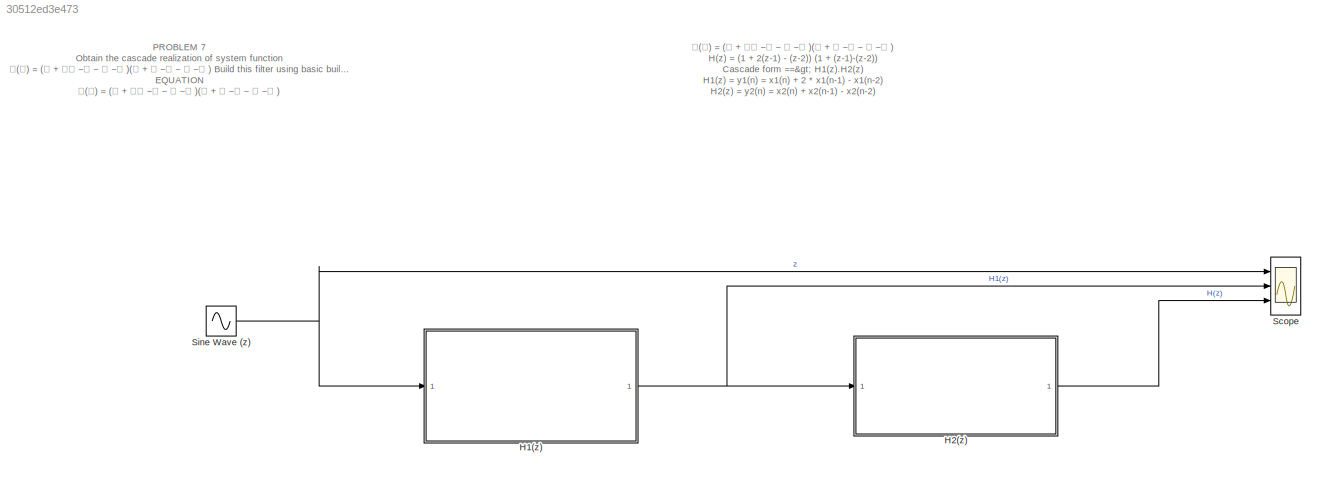
MODEL slx_30512ed3e473
KIND model
CONFIG AbsTol = auto
CONFIG EnableMultiTasking = off
CONFIG FixedStep = auto
CONFIG MaxStep = auto
CONFIG MinStep = auto
CONFIG RelTol = 1e-3
CONFIG SampleTimeConstraint = Unconstrained
CONFIG SolverName = VariableStepAuto
CONFIG StartTime = 0.0
CONFIG StopTime = 10.0
BLOCK [ModelReference] H1(z)
  ModelNameDialog = H1_z
  ModelReferenceVersion = 1.15
  Ports = [1, 1]
BLOCK [ModelReference] H2(z)
  ModelNameDialog = H2_z
  ModelReferenceVersion = 1.16
  Ports = [1, 1]
BLOCK [Scope] Scope
  Floating = off
  NumInputPorts = 3
  Ports = [3]
  ScopeSpecificationString = Simulink.scopes.TimeScopeBlockCfg('CurrentConfiguration', extmgr.ConfigurationSet(extmgr.Configuration('Core','General UI',true),extmgr.Configuration('Core','Source UI',true),extmgr.Configuration('Sources','WiredSimulink',true),extmgr.Configuration('Visuals','Time Domain',true,'SerializedDisplays',{struct('MinYLimReal','-2.73796','MaxYLimReal','2.74215','YLabelReal','','MinYLimMag','0.00000','MaxY...<+1334ch>
BLOCK [Sin] Sine Wave (z)
  Ports = [0, 1]
  SampleTime = 0
ANNOTATION (root): PROBLEM 7 Obtain the cascade realization of system function 𝐇(𝐳) = (𝟏 + 𝟐𝐳 −𝟏 − 𝐳 −𝟐 )(𝟏 + 𝐳 −𝟏 − 𝐳 −𝟐 ) Build this filter using basic building blocks in Simulink. Make this a reference model. EQUATION 𝐇(𝐳) = (𝟏 + 𝟐𝐳 −𝟏 − 𝐳 −𝟐 )(𝟏 + 𝐳 −𝟏 − 𝐳 −𝟐 )
ANNOTATION (root): 𝐇(𝐳) = (𝟏 + 𝟐𝐳 −𝟏 − 𝐳 −𝟐 )(𝟏 + 𝐳 −𝟏 − 𝐳 −𝟐 ) H(z) = (1 + 2(z-1) - (z-2)) (1 + (z-1)-(z-2)) Cascade form ==> H1(z).H2(z) H1(z) = y1(n) = x1(n) + 2 * x1(n-1) - x1(n-2) H2(z) = y2(n) = x2(n) + x2(n-1) - x2(n-2)
NET H1(z):1 -> H2(z):1, Scope:2
LINE H2(z):1 -> Scope:3
NET Sine Wave (z):1 -> H1(z):1, Scope:1
note: NET lines group one-source signal fan-out (src -> all destinations, sorted); 1:1 wires keep LINE
